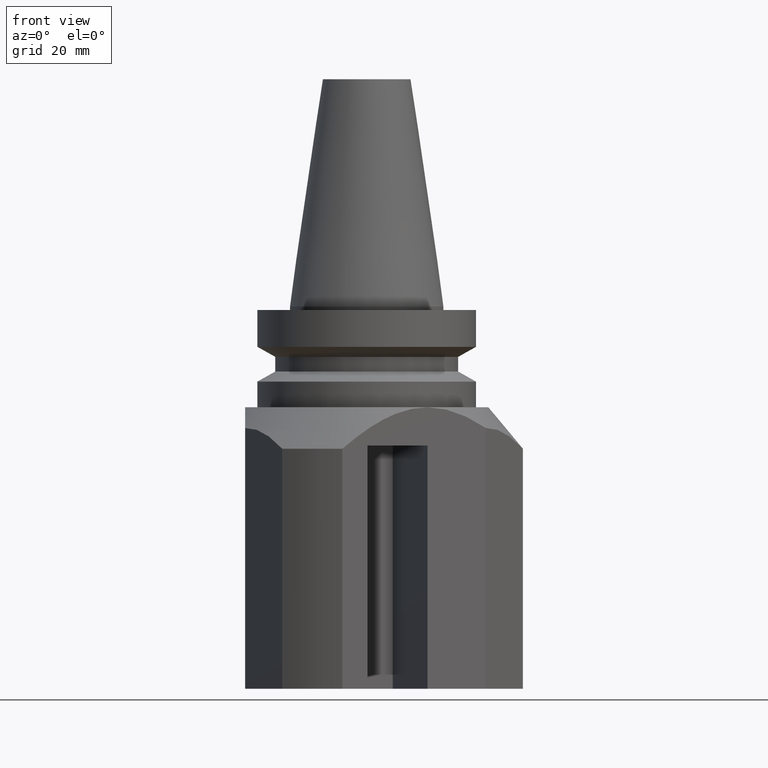
[diagram: clean part render]
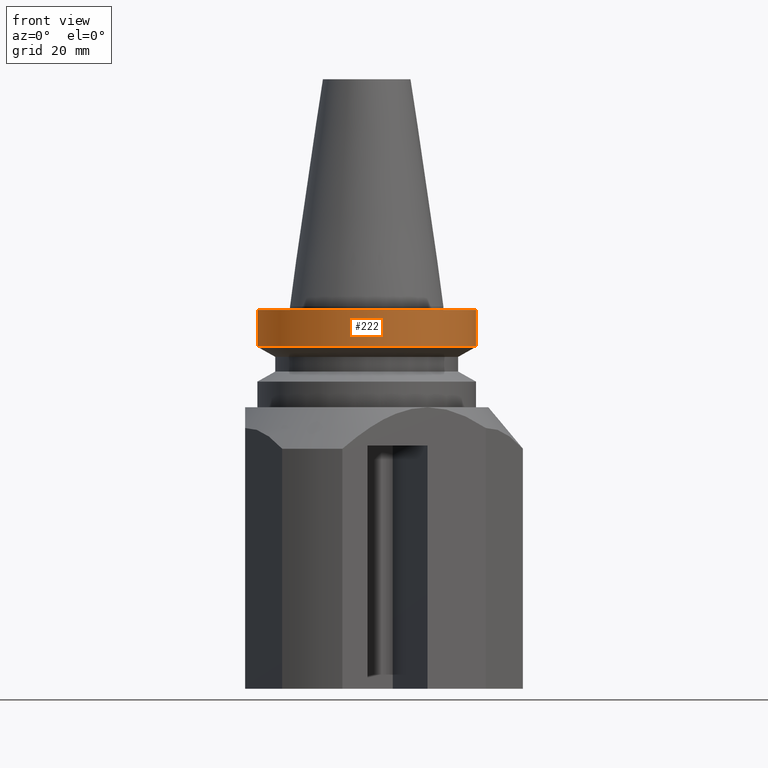
[diagram: same view with one face highlighted and labeled with its STEP entity id]
A machine part, front view. The second image highlights one B-rep face of the part: STEP entity #222.
In plain terms, the highlighted cylindrical surface (bore or boss wall) has radius 31.5 mm, axis along (0, 0, 1).
Its self-contained STEP definition (entity closure, byte-faithful):
#222=ADVANCED_FACE('Unnamed[1]',(#558,#559),#560,.T.);
#331=EDGE_CURVE('Unnamed[1]',#703,#703,#704,.T.);
#406=EDGE_CURVE('Unnamed[1]',#791,#791,#792,.T.);
#558=FACE_BOUND('',#1033,.T.);
#559=FACE_BOUND('',#1034,.T.);
#560=CYLINDRICAL_SURFACE('',#1035,31.5);
#703=VERTEX_POINT('',#1261);
#704=CIRCLE('',#1262,31.5);
#791=VERTEX_POINT('',#1418);
#792=CIRCLE('',#1419,31.5);
#1033=EDGE_LOOP('',(#1525));
#1034=EDGE_LOOP('',(#1526));
#1035=AXIS2_PLACEMENT_3D('',#1527,#1528,#1529);
#1261=CARTESIAN_POINT('',(3.7964050773568E-015,31.5,-0.999999999999833));
#1262=AXIS2_PLACEMENT_3D('',#1697,#1698,#1699);
#1418=CARTESIAN_POINT('',(3.14734227380871E-015,31.5,-11.5999999999999));
#1419=AXIS2_PLACEMENT_3D('',#1826,#1827,#1828);
#1525=ORIENTED_EDGE('',*,*,#331,.F.);
#1526=ORIENTED_EDGE('',*,*,#406,.T.);
#1527=CARTESIAN_POINT('',(-3.85763741731408E-016,-1.31214684114037E-014,-6.29999999999984));
#1528=DIRECTION('',(6.12323399573677E-017,2.69934471944583E-016,1.0));
#1529=DIRECTION('',(1.22464679914735E-016,1.0,-2.69934471944583E-016));
#1697=CARTESIAN_POINT('',(-6.12323399573587E-017,-1.16908157100973E-014,-0.999999999999829));
#1698=DIRECTION('',(6.12323399573677E-017,2.69934471944583E-016,1.0));
#1699=DIRECTION('',(1.22464679914735E-016,1.0,-2.69934471944583E-016));
#1826=CARTESIAN_POINT('',(-7.10295143505458E-016,-1.455212111271E-014,-11.5999999999999));
#1827=DIRECTION('',(6.12323399573677E-017,2.69934471944583E-016,1.0));
#1828=DIRECTION('',(1.22464679914735E-016,1.0,-2.69934471944583E-016));